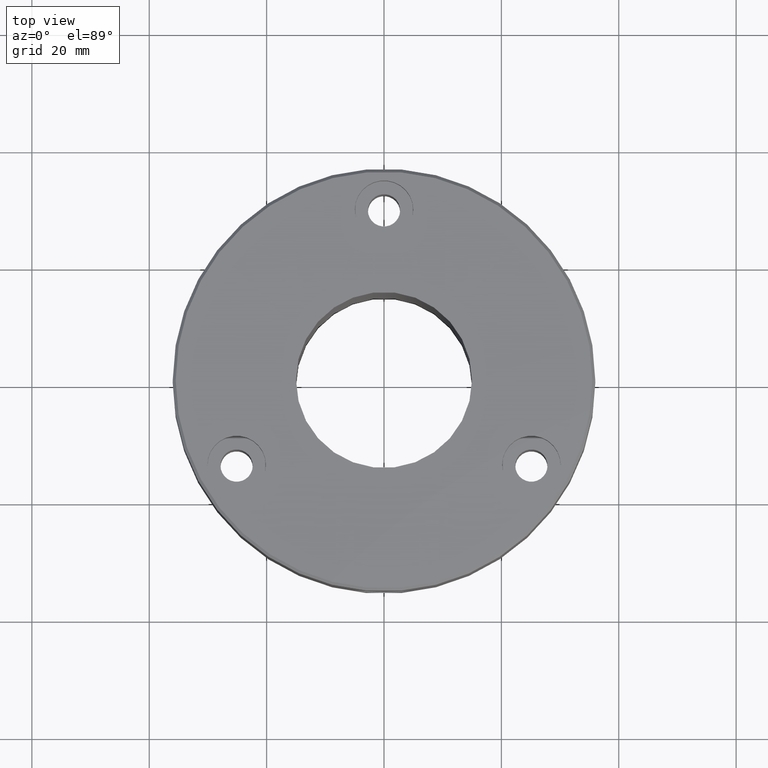
[diagram: clean part render]
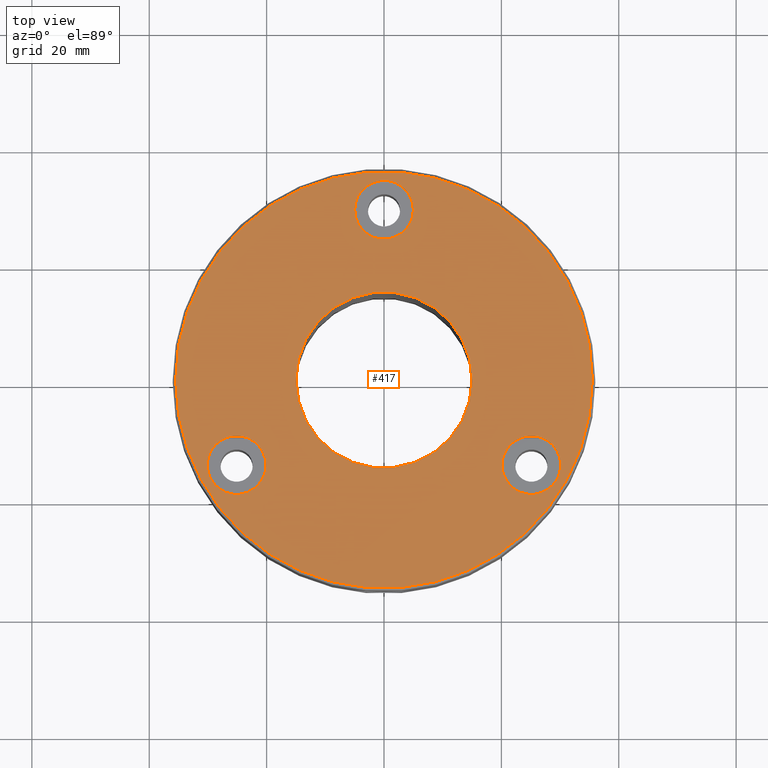
[diagram: same view with one face highlighted and labeled with its STEP entity id]
A machine part, top view. The second image highlights one B-rep face of the part: STEP entity #417.
In plain terms, the highlighted planar face has unit normal (0, -0, 1).
Its self-contained STEP definition (entity closure, byte-faithful):
#11 = ORIENTED_EDGE ( 'NONE', *, *, #112, .F. ) ;
#20 = ORIENTED_EDGE ( 'NONE', *, *, #1080, .F. ) ;
#35 = DIRECTION ( 'NONE',  ( 1.000000000000000000, 0.000000000000000000, 0.000000000000000000 ) ) ;
#42 = VERTEX_POINT ( 'NONE', #687 ) ;
#78 = DIRECTION ( 'NONE',  ( -0.000000000000000000, -0.000000000000000000, 1.000000000000000000 ) ) ;
#88 = FACE_BOUND ( 'NONE', #819, .T. ) ;
#97 = DIRECTION ( 'NONE',  ( -0.000000000000000000, -0.000000000000000000, 1.000000000000000000 ) ) ;
#112 = EDGE_CURVE ( 'NONE', #42, #514, #549, .T. ) ;
#121 = DIRECTION ( 'NONE',  ( 1.000000000000000000, 0.000000000000000000, 0.000000000000000000 ) ) ;
#122 = CIRCLE ( 'NONE', #596, 15.00000000000000000 ) ;
#125 = CARTESIAN_POINT ( 'NONE',  ( 0.000000000000000000, 0.000000000000000000, 0.000000000000000000 ) ) ;
#126 = EDGE_LOOP ( 'NONE', ( #343, #11 ) ) ;
#130 = CARTESIAN_POINT ( 'NONE',  ( 0.000000000000000000, 0.000000000000000000, 0.000000000000000000 ) ) ;
#134 = ORIENTED_EDGE ( 'NONE', *, *, #1059, .F. ) ;
#139 = CARTESIAN_POINT ( 'NONE',  ( 15.00000000000000000, 1.836970198721029589E-15, 0.000000000000000000 ) ) ;
#153 = VERTEX_POINT ( 'NONE', #139 ) ;
#154 = EDGE_CURVE ( 'NONE', #1078, #710, #451, .T. ) ;
#183 = CARTESIAN_POINT ( 'NONE',  ( 0.000000000000000000, 0.000000000000000000, 0.000000000000000000 ) ) ;
#190 = FACE_BOUND ( 'NONE', #974, .T. ) ;
#206 = DIRECTION ( 'NONE',  ( 1.000000000000000000, 0.000000000000000000, 0.000000000000000000 ) ) ;
#254 = ORIENTED_EDGE ( 'NONE', *, *, #911, .T. ) ;
#255 = CARTESIAN_POINT ( 'NONE',  ( 0.000000000000000000, 0.000000000000000000, 0.000000000000000000 ) ) ;
#278 = CIRCLE ( 'NONE', #1099, 5.000000000000000888 ) ;
#289 = DIRECTION ( 'NONE',  ( 1.000000000000000000, 0.000000000000000000, 0.000000000000000000 ) ) ;
#293 = VERTEX_POINT ( 'NONE', #1219 ) ;
#303 = CARTESIAN_POINT ( 'NONE',  ( -25.11473670974875105, -14.49999999999994316, 0.000000000000000000 ) ) ;
#307 = ORIENTED_EDGE ( 'NONE', *, *, #401, .T. ) ;
#320 = CARTESIAN_POINT ( 'NONE',  ( 25.11473670974865868, -14.50000000000011013, 0.000000000000000000 ) ) ;
#328 = VERTEX_POINT ( 'NONE', #1146 ) ;
#340 = EDGE_LOOP ( 'NONE', ( #254, #435 ) ) ;
#343 = ORIENTED_EDGE ( 'NONE', *, *, #576, .F. ) ;
#347 = DIRECTION ( 'NONE',  ( -1.000000000000000000, 0.000000000000000000, 0.000000000000000000 ) ) ;
#387 = AXIS2_PLACEMENT_3D ( 'NONE', #320, #816, #1210 ) ;
#389 = DIRECTION ( 'NONE',  ( 1.000000000000000000, 0.000000000000000000, 0.000000000000000000 ) ) ;
#401 = EDGE_CURVE ( 'NONE', #293, #153, #122, .T. ) ;
#417 = ADVANCED_FACE ( 'NONE', ( #190, #1251, #587, #88, #963 ), #1056, .T. ) ;
#421 = ORIENTED_EDGE ( 'NONE', *, *, #1207, .F. ) ;
#429 = ORIENTED_EDGE ( 'NONE', *, *, #154, .F. ) ;
#435 = ORIENTED_EDGE ( 'NONE', *, *, #992, .T. ) ;
#444 = VERTEX_POINT ( 'NONE', #675 ) ;
#451 = CIRCLE ( 'NONE', #852, 5.000000000000000888 ) ;
#459 = DIRECTION ( 'NONE',  ( 1.000000000000000000, 0.000000000000000000, 0.000000000000000000 ) ) ;
#511 = DIRECTION ( 'NONE',  ( -0.000000000000000000, -0.000000000000000000, 1.000000000000000000 ) ) ;
#514 = VERTEX_POINT ( 'NONE', #843 ) ;
#516 = CARTESIAN_POINT ( 'NONE',  ( 0.000000000000000000, 0.000000000000000000, 0.000000000000000000 ) ) ;
#523 = VERTEX_POINT ( 'NONE', #937 ) ;
#548 = CIRCLE ( 'NONE', #1241, 35.50000000000001421 ) ;
#549 = CIRCLE ( 'NONE', #387, 5.000000000000000888 ) ;
#550 = CARTESIAN_POINT ( 'NONE',  ( 0.000000000000000000, 29.00000000000000000, 0.000000000000000000 ) ) ;
#575 = CIRCLE ( 'NONE', #1139, 35.50000000000001421 ) ;
#576 = EDGE_CURVE ( 'NONE', #514, #42, #906, .T. ) ;
#587 = FACE_BOUND ( 'NONE', #1110, .T. ) ;
#596 = AXIS2_PLACEMENT_3D ( 'NONE', #255, #746, #657 ) ;
#599 = DIRECTION ( 'NONE',  ( -0.000000000000000000, -0.000000000000000000, 1.000000000000000000 ) ) ;
#646 = CARTESIAN_POINT ( 'NONE',  ( 0.000000000000000000, 29.00000000000000000, 0.000000000000000000 ) ) ;
#657 = DIRECTION ( 'NONE',  ( -1.000000000000000000, 0.000000000000000000, 0.000000000000000000 ) ) ;
#659 = CIRCLE ( 'NONE', #1220, 5.000000000000000888 ) ;
#672 = AXIS2_PLACEMENT_3D ( 'NONE', #303, #1084, #206 ) ;
#675 = CARTESIAN_POINT ( 'NONE',  ( 35.50000000000001421, 4.378112306951788646E-15, 0.000000000000000000 ) ) ;
#687 = CARTESIAN_POINT ( 'NONE',  ( 20.11473670974865513, -14.50000000000011013, 0.000000000000000000 ) ) ;
#710 = VERTEX_POINT ( 'NONE', #1071 ) ;
#740 = VERTEX_POINT ( 'NONE', #883 ) ;
#746 = DIRECTION ( 'NONE',  ( 0.000000000000000000, 0.000000000000000000, -1.000000000000000000 ) ) ;
#750 = AXIS2_PLACEMENT_3D ( 'NONE', #516, #1215, #347 ) ;
#765 = DIRECTION ( 'NONE',  ( 0.000000000000000000, -0.000000000000000000, 1.000000000000000000 ) ) ;
#782 = DIRECTION ( 'NONE',  ( 1.000000000000000000, 0.000000000000000000, 0.000000000000000000 ) ) ;
#796 = CIRCLE ( 'NONE', #750, 15.00000000000000000 ) ;
#816 = DIRECTION ( 'NONE',  ( -0.000000000000000000, -0.000000000000000000, 1.000000000000000000 ) ) ;
#819 = EDGE_LOOP ( 'NONE', ( #307, #1113 ) ) ;
#843 = CARTESIAN_POINT ( 'NONE',  ( 30.11473670974865868, -14.50000000000011013, 0.000000000000000000 ) ) ;
#852 = AXIS2_PLACEMENT_3D ( 'NONE', #646, #599, #782 ) ;
#871 = DIRECTION ( 'NONE',  ( -0.000000000000000000, -0.000000000000000000, 1.000000000000000000 ) ) ;
#883 = CARTESIAN_POINT ( 'NONE',  ( -30.11473670974875105, -14.49999999999994316, 0.000000000000000000 ) ) ;
#901 = DIRECTION ( 'NONE',  ( -0.000000000000000000, -0.000000000000000000, 1.000000000000000000 ) ) ;
#906 = CIRCLE ( 'NONE', #1054, 5.000000000000000888 ) ;
#911 = EDGE_CURVE ( 'NONE', #523, #444, #575, .T. ) ;
#937 = CARTESIAN_POINT ( 'NONE',  ( -35.50000000000001421, 0.000000000000000000, 0.000000000000000000 ) ) ;
#961 = CARTESIAN_POINT ( 'NONE',  ( -25.11473670974875105, -14.49999999999994316, 0.000000000000000000 ) ) ;
#963 = FACE_OUTER_BOUND ( 'NONE', #340, .T. ) ;
#974 = EDGE_LOOP ( 'NONE', ( #421, #20 ) ) ;
#992 = EDGE_CURVE ( 'NONE', #444, #523, #548, .T. ) ;
#1002 = DIRECTION ( 'NONE',  ( 1.000000000000000000, 0.000000000000000000, 0.000000000000000000 ) ) ;
#1053 = AXIS2_PLACEMENT_3D ( 'NONE', #183, #765, #289 ) ;
#1054 = AXIS2_PLACEMENT_3D ( 'NONE', #1067, #871, #389 ) ;
#1056 = PLANE ( 'NONE',  #1053 ) ;
#1059 = EDGE_CURVE ( 'NONE', #710, #1078, #659, .T. ) ;
#1064 = CARTESIAN_POINT ( 'NONE',  ( -5.000000000000000888, 29.00000000000000000, 0.000000000000000000 ) ) ;
#1067 = CARTESIAN_POINT ( 'NONE',  ( 25.11473670974865868, -14.50000000000011013, 0.000000000000000000 ) ) ;
#1071 = CARTESIAN_POINT ( 'NONE',  ( 5.000000000000000888, 29.00000000000000000, 0.000000000000000000 ) ) ;
#1078 = VERTEX_POINT ( 'NONE', #1064 ) ;
#1080 = EDGE_CURVE ( 'NONE', #740, #328, #278, .T. ) ;
#1084 = DIRECTION ( 'NONE',  ( -0.000000000000000000, -0.000000000000000000, 1.000000000000000000 ) ) ;
#1099 = AXIS2_PLACEMENT_3D ( 'NONE', #961, #97, #121 ) ;
#1110 = EDGE_LOOP ( 'NONE', ( #134, #429 ) ) ;
#1113 = ORIENTED_EDGE ( 'NONE', *, *, #1132, .T. ) ;
#1119 = CIRCLE ( 'NONE', #672, 5.000000000000000888 ) ;
#1132 = EDGE_CURVE ( 'NONE', #153, #293, #796, .T. ) ;
#1139 = AXIS2_PLACEMENT_3D ( 'NONE', #125, #511, #1002 ) ;
#1146 = CARTESIAN_POINT ( 'NONE',  ( -20.11473670974875105, -14.49999999999994316, 0.000000000000000000 ) ) ;
#1207 = EDGE_CURVE ( 'NONE', #328, #740, #1119, .T. ) ;
#1210 = DIRECTION ( 'NONE',  ( 1.000000000000000000, 0.000000000000000000, 0.000000000000000000 ) ) ;
#1215 = DIRECTION ( 'NONE',  ( 0.000000000000000000, 0.000000000000000000, -1.000000000000000000 ) ) ;
#1219 = CARTESIAN_POINT ( 'NONE',  ( -15.00000000000000000, 0.000000000000000000, 0.000000000000000000 ) ) ;
#1220 = AXIS2_PLACEMENT_3D ( 'NONE', #550, #78, #459 ) ;
#1241 = AXIS2_PLACEMENT_3D ( 'NONE', #130, #901, #35 ) ;
#1251 = FACE_BOUND ( 'NONE', #126, .T. ) ;